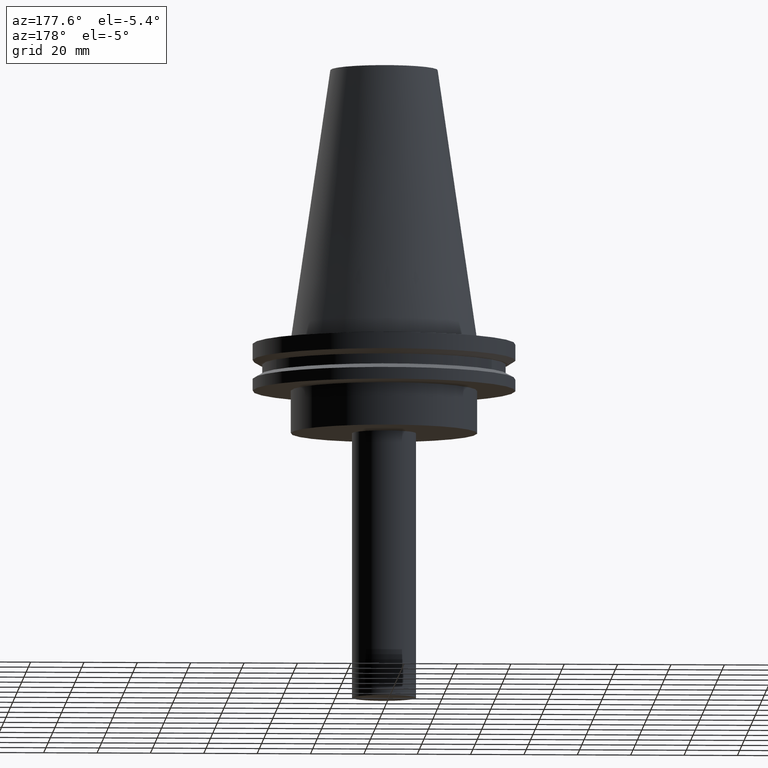
[diagram: clean part render]
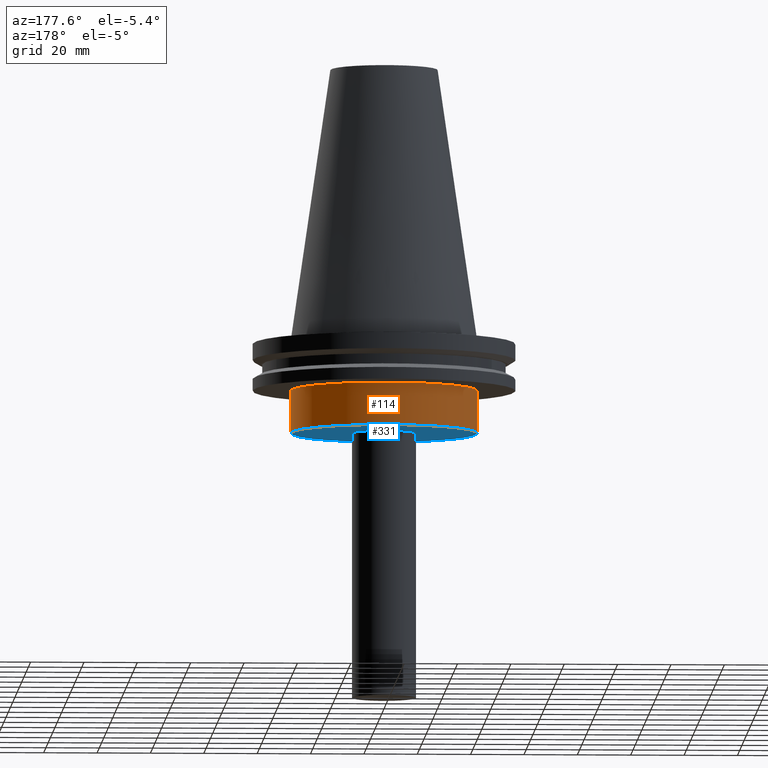
[diagram: same view with the hole feature highlighted: cylindrical wall and planar end face, labeled with their STEP entity ids]
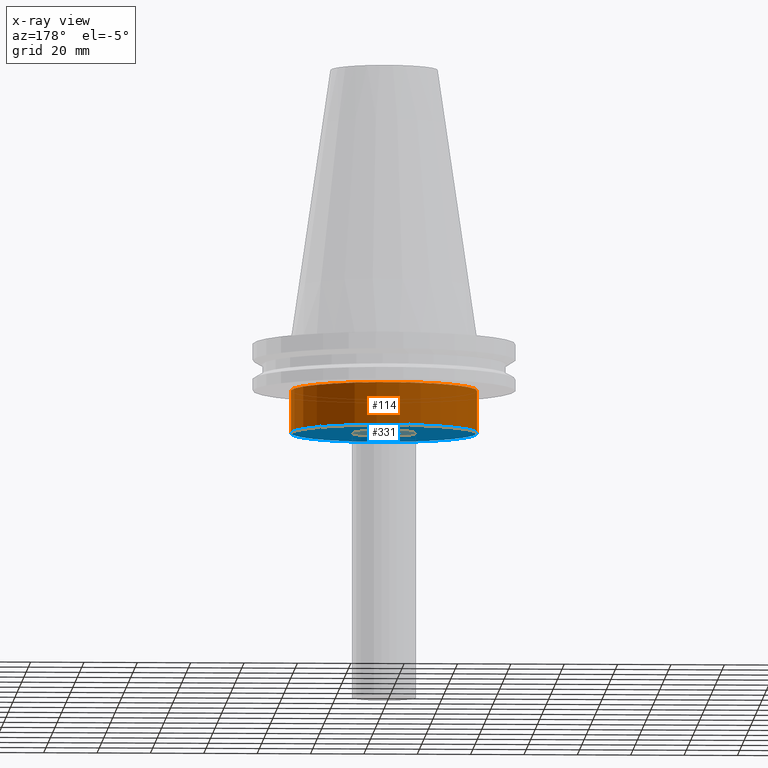
[diagram: x-ray of the same camera — body ghosted, the hole faces saturated]
A machine part, auxiliary view. The highlighted faces form one hole feature of diameter 69.85 mm: the cylindrical wall (entity #114, orange) and its adjacent planar end face (entity #331, blue) — they share a circular edge in the B-rep.
The next image is the same camera in x-ray (body ghosted, the hole faces saturated) — the bore reads through the body.
Wall:
#5 = CARTESIAN_POINT ( 'NONE',  ( 0.000000000000000000, 0.000000000000000000, -19.04999999999999716 ) ) ;
#17 = AXIS2_PLACEMENT_3D ( 'NONE', #115, #267, #113 ) ;
#24 = CYLINDRICAL_SURFACE ( 'NONE', #17, 34.92499999999999716 ) ;
#29 = VERTEX_POINT ( 'NONE', #88 ) ;
#73 = ORIENTED_EDGE ( 'NONE', *, *, #387, .T. ) ;
#88 = CARTESIAN_POINT ( 'NONE',  ( 34.92499999999999716, 0.000000000000000000, -35.00000000000000000 ) ) ;
#96 = ORIENTED_EDGE ( 'NONE', *, *, #309, .F. ) ;
#113 = DIRECTION ( 'NONE',  ( 1.000000000000000000, 0.000000000000000000, 0.000000000000000000 ) ) ;
#114 = ADVANCED_FACE ( 'NONE', ( #297, #389 ), #24, .T. ) ;
#115 = CARTESIAN_POINT ( 'NONE',  ( 0.000000000000000000, 0.000000000000000000, 101.5999999999999943 ) ) ;
#124 = CIRCLE ( 'NONE', #292, 34.92499999999999716 ) ;
#140 = DIRECTION ( 'NONE',  ( 1.000000000000000000, 0.000000000000000000, 0.000000000000000000 ) ) ;
#156 = CARTESIAN_POINT ( 'NONE',  ( 34.92499999999999716, 0.000000000000000000, -19.04999999999999716 ) ) ;
#164 = DIRECTION ( 'NONE',  ( -0.000000000000000000, -0.000000000000000000, 1.000000000000000000 ) ) ;
#167 = DIRECTION ( 'NONE',  ( 1.000000000000000000, 0.000000000000000000, 0.000000000000000000 ) ) ;
#185 = EDGE_LOOP ( 'NONE', ( #73 ) ) ;
#267 = DIRECTION ( 'NONE',  ( -0.000000000000000000, -0.000000000000000000, 1.000000000000000000 ) ) ;
#274 = CIRCLE ( 'NONE', #308, 34.92499999999999716 ) ;
#292 = AXIS2_PLACEMENT_3D ( 'NONE', #373, #164, #140 ) ;
#297 = FACE_OUTER_BOUND ( 'NONE', #345, .T. ) ;
#308 = AXIS2_PLACEMENT_3D ( 'NONE', #5, #376, #167 ) ;
#309 = EDGE_CURVE ( 'NONE', #311, #311, #274, .T. ) ;
#311 = VERTEX_POINT ( 'NONE', #156 ) ;
#345 = EDGE_LOOP ( 'NONE', ( #96 ) ) ;
#373 = CARTESIAN_POINT ( 'NONE',  ( 0.000000000000000000, 0.000000000000000000, -35.00000000000000000 ) ) ;
#376 = DIRECTION ( 'NONE',  ( -0.000000000000000000, -0.000000000000000000, 1.000000000000000000 ) ) ;
#387 = EDGE_CURVE ( 'NONE', #29, #29, #124, .T. ) ;
#389 = FACE_OUTER_BOUND ( 'NONE', #185, .T. ) ;
End face:
#2 = VERTEX_POINT ( 'NONE', #346 ) ;
#29 = VERTEX_POINT ( 'NONE', #88 ) ;
#36 = FACE_BOUND ( 'NONE', #288, .T. ) ;
#44 = DIRECTION ( 'NONE',  ( 1.000000000000000000, 0.000000000000000000, 0.000000000000000000 ) ) ;
#88 = CARTESIAN_POINT ( 'NONE',  ( 34.92499999999999716, 0.000000000000000000, -35.00000000000000000 ) ) ;
#121 = AXIS2_PLACEMENT_3D ( 'NONE', #358, #148, #386 ) ;
#124 = CIRCLE ( 'NONE', #292, 34.92499999999999716 ) ;
#130 = FACE_OUTER_BOUND ( 'NONE', #339, .T. ) ;
#140 = DIRECTION ( 'NONE',  ( 1.000000000000000000, 0.000000000000000000, 0.000000000000000000 ) ) ;
#148 = DIRECTION ( 'NONE',  ( -0.000000000000000000, -0.000000000000000000, 1.000000000000000000 ) ) ;
#149 = EDGE_CURVE ( 'NONE', #2, #2, #211, .T. ) ;
#151 = ORIENTED_EDGE ( 'NONE', *, *, #149, .T. ) ;
#164 = DIRECTION ( 'NONE',  ( -0.000000000000000000, -0.000000000000000000, 1.000000000000000000 ) ) ;
#193 = DIRECTION ( 'NONE',  ( 0.000000000000000000, -0.000000000000000000, 1.000000000000000000 ) ) ;
#199 = CARTESIAN_POINT ( 'NONE',  ( 0.000000000000000000, 34.92499999999999716, -35.00000000000000000 ) ) ;
#211 = CIRCLE ( 'NONE', #121, 12.00000000000000000 ) ;
#254 = AXIS2_PLACEMENT_3D ( 'NONE', #199, #193, #44 ) ;
#255 = PLANE ( 'NONE',  #254 ) ;
#264 = ORIENTED_EDGE ( 'NONE', *, *, #387, .F. ) ;
#288 = EDGE_LOOP ( 'NONE', ( #151 ) ) ;
#292 = AXIS2_PLACEMENT_3D ( 'NONE', #373, #164, #140 ) ;
#331 = ADVANCED_FACE ( 'NONE', ( #36, #130 ), #255, .F. ) ;
#339 = EDGE_LOOP ( 'NONE', ( #264 ) ) ;
#346 = CARTESIAN_POINT ( 'NONE',  ( 12.00000000000000000, 0.000000000000000000, -35.00000000000000000 ) ) ;
#358 = CARTESIAN_POINT ( 'NONE',  ( 0.000000000000000000, 0.000000000000000000, -35.00000000000000000 ) ) ;
#373 = CARTESIAN_POINT ( 'NONE',  ( 0.000000000000000000, 0.000000000000000000, -35.00000000000000000 ) ) ;
#386 = DIRECTION ( 'NONE',  ( 1.000000000000000000, 0.000000000000000000, 0.000000000000000000 ) ) ;
#387 = EDGE_CURVE ( 'NONE', #29, #29, #124, .T. ) ;